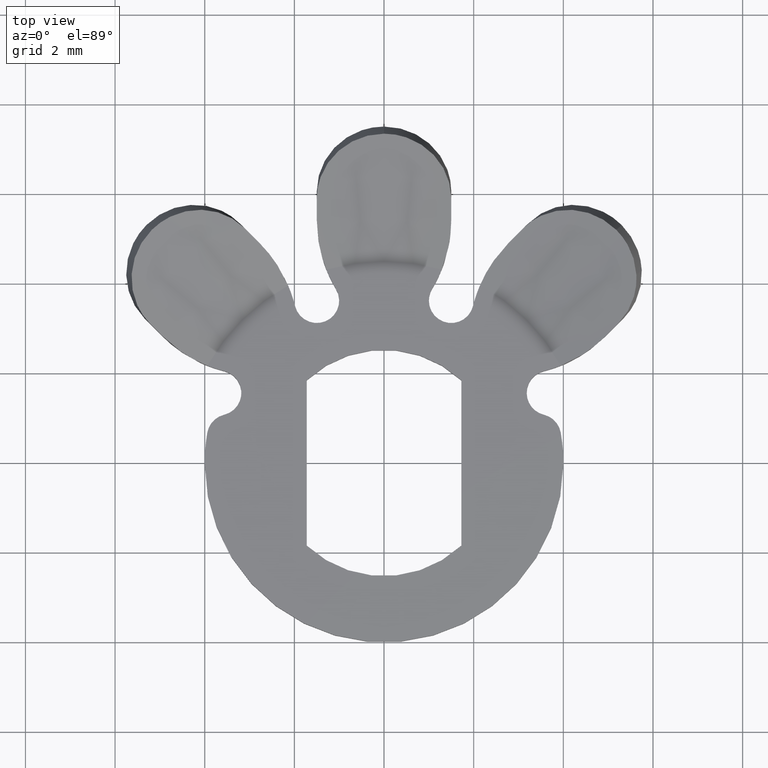
[diagram: clean part render]
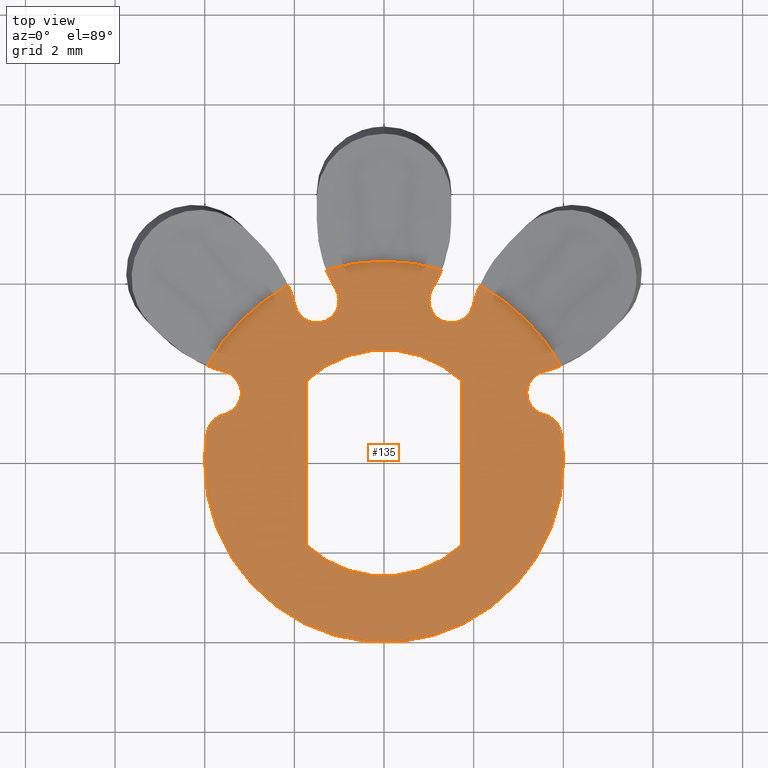
[diagram: same view with one face highlighted and labeled with its STEP entity id]
A machine part, top view. The second image highlights one B-rep face of the part: STEP entity #135.
In plain terms, the highlighted planar face has unit normal (0, 0, -1).
Its self-contained STEP definition (entity closure, byte-faithful):
#3 = AXIS2_PLACEMENT_3D ( 'NONE', #1452, #865, #63 ) ;
#22 = ORIENTED_EDGE ( 'NONE', *, *, #559, .T. ) ;
#23 = CARTESIAN_POINT ( 'NONE',  ( 3.561744368610718400, 2.046515551782373900, 0.5000000000000002200 ) ) ;
#48 = DIRECTION ( 'NONE',  ( -1.000000000000000000, 8.673617379884035500E-016, 0.0000000000000000000 ) ) ;
#54 = CIRCLE ( 'NONE', #1399, 0.4999999999999997800 ) ;
#63 = DIRECTION ( 'NONE',  ( 1.000000000000000000, 0.0000000000000000000, 0.0000000000000000000 ) ) ;
#86 = CARTESIAN_POINT ( 'NONE',  ( -2.139618078849467400, 3.958792047665615300, 0.5000000000000004400 ) ) ;
#109 = ORIENTED_EDGE ( 'NONE', *, *, #592, .F. ) ;
#131 = VERTEX_POINT ( 'NONE', #1215 ) ;
#135 = ADVANCED_FACE ( 'NONE', ( #1712, #342 ), #677, .F. ) ;
#141 = CARTESIAN_POINT ( 'NONE',  ( 0.0000000000000000000, 0.0000000000000000000, 0.5000000000000002200 ) ) ;
#146 = ORIENTED_EDGE ( 'NONE', *, *, #689, .T. ) ;
#152 = AXIS2_PLACEMENT_3D ( 'NONE', #1685, #892, #885 ) ;
#167 = CIRCLE ( 'NONE', #403, 0.4999999999999997800 ) ;
#189 = AXIS2_PLACEMENT_3D ( 'NONE', #481, #883, #204 ) ;
#204 = DIRECTION ( 'NONE',  ( -1.000000000000000000, 8.818177669548768900E-015, 0.0000000000000000000 ) ) ;
#205 = DIRECTION ( 'NONE',  ( -0.0000000000000000000, -0.0000000000000000000, 1.000000000000000000 ) ) ;
#206 = CARTESIAN_POINT ( 'NONE',  ( 2.139618078849467000, 3.958792047665616200, 0.5000000000000004400 ) ) ;
#208 = DIRECTION ( 'NONE',  ( 0.0000000000000000000, 0.0000000000000000000, -1.000000000000000000 ) ) ;
#213 = VECTOR ( 'NONE', #223, 1000.000000000000000 ) ;
#223 = DIRECTION ( 'NONE',  ( 0.0000000000000000000, 1.000000000000000000, 0.0000000000000000000 ) ) ;
#237 = CIRCLE ( 'NONE', #799, 3.000000000000000000 ) ;
#253 = AXIS2_PLACEMENT_3D ( 'NONE', #1225, #1367, #676 ) ;
#255 = CIRCLE ( 'NONE', #275, 3.000000000000000000 ) ;
#259 = EDGE_CURVE ( 'NONE', #1356, #1121, #167, .T. ) ;
#260 = ORIENTED_EDGE ( 'NONE', *, *, #321, .T. ) ;
#275 = AXIS2_PLACEMENT_3D ( 'NONE', #1611, #423, #1538 ) ;
#285 = DIRECTION ( 'NONE',  ( -0.0000000000000000000, -0.0000000000000000000, 1.000000000000000000 ) ) ;
#287 = CIRCLE ( 'NONE', #1655, 4.500000000000000900 ) ;
#301 = CARTESIAN_POINT ( 'NONE',  ( 1.725000000000000100, 4.500000000000000900, 0.5000000000000002200 ) ) ;
#306 = CIRCLE ( 'NONE', #613, 3.000000000000000400 ) ;
#312 = DIRECTION ( 'NONE',  ( -1.000000000000000000, 0.0000000000000000000, 0.0000000000000000000 ) ) ;
#321 = EDGE_CURVE ( 'NONE', #712, #1211, #1530, .T. ) ;
#335 = CIRCLE ( 'NONE', #376, 4.000000000000000000 ) ;
#340 = DIRECTION ( 'NONE',  ( -0.0000000000000000000, -0.0000000000000000000, 1.000000000000000000 ) ) ;
#342 = FACE_BOUND ( 'NONE', #1565, .T. ) ;
#365 = CARTESIAN_POINT ( 'NONE',  ( 1.499999999999999800, 3.621320343559632200, 0.5000000000000002200 ) ) ;
#372 = ORIENTED_EDGE ( 'NONE', *, *, #583, .T. ) ;
#376 = AXIS2_PLACEMENT_3D ( 'NONE', #1325, #1122, #1046 ) ;
#386 = CARTESIAN_POINT ( 'NONE',  ( -2.836116827043756700, 4.957437170603397700, 0.5000000000000002200 ) ) ;
#391 = ORIENTED_EDGE ( 'NONE', *, *, #1107, .F. ) ;
#400 = CARTESIAN_POINT ( 'NONE',  ( -1.724999999999999600, 1.843908891458577500, 0.5000000000000002200 ) ) ;
#403 = AXIS2_PLACEMENT_3D ( 'NONE', #726, #1648, #857 ) ;
#423 = DIRECTION ( 'NONE',  ( -0.0000000000000000000, -0.0000000000000000000, 1.000000000000000000 ) ) ;
#427 = VERTEX_POINT ( 'NONE', #1040 ) ;
#431 = AXIS2_PLACEMENT_3D ( 'NONE', #725, #687, #48 ) ;
#460 = CIRCLE ( 'NONE', #1573, 0.5000000000000004400 ) ;
#466 = AXIS2_PLACEMENT_3D ( 'NONE', #1651, #961, #1234 ) ;
#468 = CARTESIAN_POINT ( 'NONE',  ( 1.000000000000000000, 3.621320343559632200, 0.5000000000000002200 ) ) ;
#471 = CARTESIAN_POINT ( 'NONE',  ( 3.942765279000202100, 2.169009440899337900, 0.5000000000000004400 ) ) ;
#480 = CARTESIAN_POINT ( 'NONE',  ( -1.725000000000000100, -1.843908891458577300, 0.5000000000000002200 ) ) ;
#481 = CARTESIAN_POINT ( 'NONE',  ( 4.896075221957835800, 2.774754878398176100, 0.5000000000000002200 ) ) ;
#484 = CIRCLE ( 'NONE', #742, 0.5000000000000000000 ) ;
#486 = VERTEX_POINT ( 'NONE', #1125 ) ;
#495 = CARTESIAN_POINT ( 'NONE',  ( -4.000000000000000000, 0.0000000000000000000, 0.5000000000000002200 ) ) ;
#496 = EDGE_CURVE ( 'NONE', #1103, #1274, #1016, .T. ) ;
#501 = DIRECTION ( 'NONE',  ( -1.000000000000000000, 0.0000000000000000000, 0.0000000000000000000 ) ) ;
#512 = ORIENTED_EDGE ( 'NONE', *, *, #1143, .F. ) ;
#515 = VERTEX_POINT ( 'NONE', #1012 ) ;
#518 = AXIS2_PLACEMENT_3D ( 'NONE', #386, #661, #1461 ) ;
#521 = CIRCLE ( 'NONE', #1098, 2.524999999999999900 ) ;
#522 = CIRCLE ( 'NONE', #466, 4.500000000000000900 ) ;
#525 = EDGE_CURVE ( 'NONE', #1026, #131, #287, .T. ) ;
#538 = DIRECTION ( 'NONE',  ( 0.0000000000000000000, 0.0000000000000000000, -1.000000000000000000 ) ) ;
#552 = ORIENTED_EDGE ( 'NONE', *, *, #259, .F. ) ;
#559 = EDGE_CURVE ( 'NONE', #1351, #486, #1627, .T. ) ;
#576 = CARTESIAN_POINT ( 'NONE',  ( 3.566401869253394500, 1.075071024158819900, 0.5000000000000002200 ) ) ;
#579 = EDGE_CURVE ( 'NONE', #1599, #1522, #966, .T. ) ;
#583 = EDGE_CURVE ( 'NONE', #515, #1716, #255, .T. ) ;
#589 = CARTESIAN_POINT ( 'NONE',  ( 1.286350249507952400, 4.312227154915524000, 0.5000000000000004400 ) ) ;
#592 = EDGE_CURVE ( 'NONE', #596, #633, #335, .T. ) ;
#596 = VERTEX_POINT ( 'NONE', #1489 ) ;
#599 = VERTEX_POINT ( 'NONE', #576 ) ;
#611 = VECTOR ( 'NONE', #1222, 1000.000000000000000 ) ;
#613 = AXIS2_PLACEMENT_3D ( 'NONE', #1337, #1424, #1684 ) ;
#620 = EDGE_CURVE ( 'NONE', #1153, #1304, #1283, .T. ) ;
#621 = EDGE_LOOP ( 'NONE', ( #1126, #260, #974, #109, #828, #146, #512, #1579, #1615, #1319, #22, #391, #552, #1000, #1355, #684, #1050, #372, #1445, #936 ) ) ;
#627 = CARTESIAN_POINT ( 'NONE',  ( 0.0000000000000000000, 0.0000000000000000000, 0.5000000000000004400 ) ) ;
#633 = VERTEX_POINT ( 'NONE', #495 ) ;
#646 = CARTESIAN_POINT ( 'NONE',  ( -1.071428571428571000, 3.878859720378488700, 0.5000000000000002200 ) ) ;
#661 = DIRECTION ( 'NONE',  ( -0.0000000000000000000, -0.0000000000000000000, 1.000000000000000000 ) ) ;
#676 = DIRECTION ( 'NONE',  ( -1.000000000000000000, 0.0000000000000000000, 0.0000000000000000000 ) ) ;
#677 = PLANE ( 'NONE',  #982 ) ;
#684 = ORIENTED_EDGE ( 'NONE', *, *, #896, .T. ) ;
#687 = DIRECTION ( 'NONE',  ( -0.0000000000000000000, -0.0000000000000000000, 1.000000000000000000 ) ) ;
#689 = EDGE_CURVE ( 'NONE', #1104, #599, #484, .T. ) ;
#712 = VERTEX_POINT ( 'NONE', #1359 ) ;
#725 = CARTESIAN_POINT ( 'NONE',  ( -1.499999999999999600, 3.621320343559632200, 0.5000000000000002200 ) ) ;
#726 = CARTESIAN_POINT ( 'NONE',  ( 1.499999999999999800, 3.621320343559632200, 0.5000000000000002200 ) ) ;
#727 = CARTESIAN_POINT ( 'NONE',  ( -5.401456761889874900E-019, 0.0000000000000000000, 0.5000000000000002200 ) ) ;
#731 = ORIENTED_EDGE ( 'NONE', *, *, #1127, .F. ) ;
#733 = DIRECTION ( 'NONE',  ( -0.0000000000000000000, -0.0000000000000000000, 1.000000000000000000 ) ) ;
#740 = CARTESIAN_POINT ( 'NONE',  ( -3.561744368610708600, 2.046515551782392500, 0.5000000000000002200 ) ) ;
#742 = AXIS2_PLACEMENT_3D ( 'NONE', #1214, #1271, #1286 ) ;
#743 = CIRCLE ( 'NONE', #3, 4.500000000000000900 ) ;
#757 = CARTESIAN_POINT ( 'NONE',  ( 3.682682292205207800, 1.561361948645538800, 0.5000000000000002200 ) ) ;
#767 = DIRECTION ( 'NONE',  ( 1.000000000000000000, 0.0000000000000000000, 0.0000000000000000000 ) ) ;
#770 = CARTESIAN_POINT ( 'NONE',  ( 3.182682292205207400, 1.561361948645538800, 0.5000000000000002200 ) ) ;
#778 = EDGE_CURVE ( 'NONE', #1716, #427, #522, .T. ) ;
#786 = DIRECTION ( 'NONE',  ( -1.000000000000000000, 8.881784197001252300E-016, 0.0000000000000000000 ) ) ;
#792 = DIRECTION ( 'NONE',  ( -1.000000000000000000, 0.0000000000000000000, 0.0000000000000000000 ) ) ;
#799 = AXIS2_PLACEMENT_3D ( 'NONE', #1062, #1486, #813 ) ;
#813 = DIRECTION ( 'NONE',  ( -1.000000000000000000, -2.602085213965210600E-015, 0.0000000000000000000 ) ) ;
#824 = DIRECTION ( 'NONE',  ( -0.0000000000000000000, -0.0000000000000000000, 1.000000000000000000 ) ) ;
#828 = ORIENTED_EDGE ( 'NONE', *, *, #1551, .F. ) ;
#835 = CARTESIAN_POINT ( 'NONE',  ( 1.724999999999999900, 1.843908891458577100, 0.5000000000000002200 ) ) ;
#857 = DIRECTION ( 'NONE',  ( -1.000000000000000000, 1.561251128379127000E-014, 0.0000000000000000000 ) ) ;
#860 = AXIS2_PLACEMENT_3D ( 'NONE', #1013, #205, #1149 ) ;
#861 = AXIS2_PLACEMENT_3D ( 'NONE', #874, #824, #792 ) ;
#865 = DIRECTION ( 'NONE',  ( -0.0000000000000000000, -0.0000000000000000000, 1.000000000000000000 ) ) ;
#866 = CARTESIAN_POINT ( 'NONE',  ( 1.725000000000000300, -1.843908891458576800, 0.5000000000000002200 ) ) ;
#874 = CARTESIAN_POINT ( 'NONE',  ( 1.499999999999999800, 5.424095981291627800, 0.5000000000000002200 ) ) ;
#883 = DIRECTION ( 'NONE',  ( -0.0000000000000000000, -0.0000000000000000000, 1.000000000000000000 ) ) ;
#885 = DIRECTION ( 'NONE',  ( -1.000000000000000000, 8.673617379884043400E-016, 0.0000000000000000000 ) ) ;
#889 = CIRCLE ( 'NONE', #1009, 4.000000000000000000 ) ;
#892 = DIRECTION ( 'NONE',  ( -0.0000000000000000000, -0.0000000000000000000, 1.000000000000000000 ) ) ;
#896 = EDGE_CURVE ( 'NONE', #131, #1111, #1345, .T. ) ;
#908 = CIRCLE ( 'NONE', #518, 3.000000000000000400 ) ;
#924 = DIRECTION ( 'NONE',  ( -0.0000000000000000000, -0.0000000000000000000, 1.000000000000000000 ) ) ;
#935 = VERTEX_POINT ( 'NONE', #471 ) ;
#936 = ORIENTED_EDGE ( 'NONE', *, *, #1713, .T. ) ;
#949 = CARTESIAN_POINT ( 'NONE',  ( 3.682682292205207800, 1.561361948645538800, 0.5000000000000002200 ) ) ;
#955 = CARTESIAN_POINT ( 'NONE',  ( -3.942995938630374100, 0.6728915424824237800, 0.5000000000000002200 ) ) ;
#961 = DIRECTION ( 'NONE',  ( -0.0000000000000000000, -0.0000000000000000000, 1.000000000000000000 ) ) ;
#966 = LINE ( 'NONE', #1686, #611 ) ;
#974 = ORIENTED_EDGE ( 'NONE', *, *, #1465, .F. ) ;
#978 = ORIENTED_EDGE ( 'NONE', *, *, #1429, .F. ) ;
#982 = AXIS2_PLACEMENT_3D ( 'NONE', #1347, #538, #1483 ) ;
#1000 = ORIENTED_EDGE ( 'NONE', *, *, #1631, .T. ) ;
#1009 = AXIS2_PLACEMENT_3D ( 'NONE', #141, #208, #312 ) ;
#1012 = CARTESIAN_POINT ( 'NONE',  ( -1.985153603136833300, 3.500382419965138300, 0.5000000000000002200 ) ) ;
#1013 = CARTESIAN_POINT ( 'NONE',  ( -3.450121446301577200, 0.5887800996721207500, 0.5000000000000002200 ) ) ;
#1014 = CARTESIAN_POINT ( 'NONE',  ( 1.071428571428571400, 3.878859720378488300, 0.5000000000000002200 ) ) ;
#1016 = CIRCLE ( 'NONE', #1397, 0.5000000000000004400 ) ;
#1026 = VERTEX_POINT ( 'NONE', #589 ) ;
#1031 = ORIENTED_EDGE ( 'NONE', *, *, #579, .F. ) ;
#1040 = CARTESIAN_POINT ( 'NONE',  ( -3.942765279000191000, 2.169009440899358300, 0.5000000000000004400 ) ) ;
#1046 = DIRECTION ( 'NONE',  ( -1.000000000000000000, 0.0000000000000000000, 0.0000000000000000000 ) ) ;
#1050 = ORIENTED_EDGE ( 'NONE', *, *, #1603, .F. ) ;
#1062 = CARTESIAN_POINT ( 'NONE',  ( 2.836116827043779800, 4.957437170603382600, 0.5000000000000002200 ) ) ;
#1098 = AXIS2_PLACEMENT_3D ( 'NONE', #727, #285, #1547 ) ;
#1103 = VERTEX_POINT ( 'NONE', #23 ) ;
#1104 = VERTEX_POINT ( 'NONE', #1531 ) ;
#1107 = EDGE_CURVE ( 'NONE', #1121, #486, #54, .T. ) ;
#1111 = VERTEX_POINT ( 'NONE', #646 ) ;
#1116 = CIRCLE ( 'NONE', #152, 0.4999999999999995600 ) ;
#1121 = VERTEX_POINT ( 'NONE', #468 ) ;
#1122 = DIRECTION ( 'NONE',  ( 0.0000000000000000000, 0.0000000000000000000, -1.000000000000000000 ) ) ;
#1125 = CARTESIAN_POINT ( 'NONE',  ( 1.985153603136833300, 3.500382419965138300, 0.5000000000000002200 ) ) ;
#1126 = ORIENTED_EDGE ( 'NONE', *, *, #1535, .F. ) ;
#1127 = EDGE_CURVE ( 'NONE', #1304, #1599, #1491, .T. ) ;
#1143 = EDGE_CURVE ( 'NONE', #1274, #599, #460, .T. ) ;
#1149 = DIRECTION ( 'NONE',  ( -1.000000000000000000, 0.0000000000000000000, 0.0000000000000000000 ) ) ;
#1153 = VERTEX_POINT ( 'NONE', #866 ) ;
#1169 = EDGE_CURVE ( 'NONE', #935, #1351, #743, .T. ) ;
#1211 = VERTEX_POINT ( 'NONE', #955 ) ;
#1214 = CARTESIAN_POINT ( 'NONE',  ( 3.450121446301580800, 0.5887800996721007700, 0.5000000000000002200 ) ) ;
#1215 = CARTESIAN_POINT ( 'NONE',  ( -1.286350249507952200, 4.312227154915524000, 0.5000000000000004400 ) ) ;
#1222 = DIRECTION ( 'NONE',  ( 0.0000000000000000000, -1.000000000000000000, 0.0000000000000000000 ) ) ;
#1225 = CARTESIAN_POINT ( 'NONE',  ( 0.0000000000000000000, 0.0000000000000000000, 0.5000000000000002200 ) ) ;
#1234 = DIRECTION ( 'NONE',  ( 1.000000000000000000, 0.0000000000000000000, 0.0000000000000000000 ) ) ;
#1256 = VERTEX_POINT ( 'NONE', #740 ) ;
#1271 = DIRECTION ( 'NONE',  ( -0.0000000000000000000, -0.0000000000000000000, 1.000000000000000000 ) ) ;
#1274 = VERTEX_POINT ( 'NONE', #770 ) ;
#1283 = LINE ( 'NONE', #301, #213 ) ;
#1286 = DIRECTION ( 'NONE',  ( -1.000000000000000000, 1.734723475976807100E-015, 0.0000000000000000000 ) ) ;
#1288 = DIRECTION ( 'NONE',  ( -0.0000000000000000000, -0.0000000000000000000, 1.000000000000000000 ) ) ;
#1301 = ORIENTED_EDGE ( 'NONE', *, *, #620, .F. ) ;
#1304 = VERTEX_POINT ( 'NONE', #835 ) ;
#1315 = AXIS2_PLACEMENT_3D ( 'NONE', #1515, #924, #786 ) ;
#1319 = ORIENTED_EDGE ( 'NONE', *, *, #1169, .T. ) ;
#1325 = CARTESIAN_POINT ( 'NONE',  ( 0.0000000000000000000, 0.0000000000000000000, 0.5000000000000002200 ) ) ;
#1337 = CARTESIAN_POINT ( 'NONE',  ( -1.500000000000000000, 5.424095981291626100, 0.5000000000000002200 ) ) ;
#1345 = CIRCLE ( 'NONE', #861, 3.000000000000000000 ) ;
#1347 = CARTESIAN_POINT ( 'NONE',  ( 0.0000000000000000000, 4.500000000000000900, 0.5000000000000002200 ) ) ;
#1351 = VERTEX_POINT ( 'NONE', #206 ) ;
#1355 = ORIENTED_EDGE ( 'NONE', *, *, #525, .T. ) ;
#1356 = VERTEX_POINT ( 'NONE', #1014 ) ;
#1359 = CARTESIAN_POINT ( 'NONE',  ( -3.566401869253388800, 1.075071024158839300, 0.5000000000000002200 ) ) ;
#1367 = DIRECTION ( 'NONE',  ( 0.0000000000000000000, 0.0000000000000000000, -1.000000000000000000 ) ) ;
#1384 = CIRCLE ( 'NONE', #431, 0.5000000000000000000 ) ;
#1397 = AXIS2_PLACEMENT_3D ( 'NONE', #757, #1649, #1499 ) ;
#1399 = AXIS2_PLACEMENT_3D ( 'NONE', #365, #1288, #1555 ) ;
#1424 = DIRECTION ( 'NONE',  ( -0.0000000000000000000, -0.0000000000000000000, 1.000000000000000000 ) ) ;
#1429 = EDGE_CURVE ( 'NONE', #1522, #1153, #521, .T. ) ;
#1430 = CIRCLE ( 'NONE', #253, 4.000000000000000000 ) ;
#1445 = ORIENTED_EDGE ( 'NONE', *, *, #778, .T. ) ;
#1452 = CARTESIAN_POINT ( 'NONE',  ( 0.0000000000000000000, 0.0000000000000000000, 0.5000000000000004400 ) ) ;
#1461 = DIRECTION ( 'NONE',  ( -1.000000000000000000, 0.0000000000000000000, 0.0000000000000000000 ) ) ;
#1465 = EDGE_CURVE ( 'NONE', #633, #1211, #889, .T. ) ;
#1483 = DIRECTION ( 'NONE',  ( -1.000000000000000000, 0.0000000000000000000, -0.0000000000000000000 ) ) ;
#1486 = DIRECTION ( 'NONE',  ( -0.0000000000000000000, -0.0000000000000000000, 1.000000000000000000 ) ) ;
#1489 = CARTESIAN_POINT ( 'NONE',  ( 4.000000000000000000, 4.898587196589412800E-016, 0.5000000000000002200 ) ) ;
#1491 = CIRCLE ( 'NONE', #1315, 2.524999999999999900 ) ;
#1499 = DIRECTION ( 'NONE',  ( -1.000000000000000000, -8.673617379884027600E-016, 0.0000000000000000000 ) ) ;
#1515 = CARTESIAN_POINT ( 'NONE',  ( -5.401456761889874900E-019, 0.0000000000000000000, 0.5000000000000002200 ) ) ;
#1522 = VERTEX_POINT ( 'NONE', #480 ) ;
#1530 = CIRCLE ( 'NONE', #860, 0.5000000000000000000 ) ;
#1531 = CARTESIAN_POINT ( 'NONE',  ( 3.942995938630377700, 0.6728915424824008000, 0.5000000000000002200 ) ) ;
#1535 = EDGE_CURVE ( 'NONE', #712, #1256, #1116, .T. ) ;
#1538 = DIRECTION ( 'NONE',  ( -1.000000000000000000, 0.0000000000000000000, 0.0000000000000000000 ) ) ;
#1547 = DIRECTION ( 'NONE',  ( -1.000000000000000000, 0.0000000000000000000, 0.0000000000000000000 ) ) ;
#1551 = EDGE_CURVE ( 'NONE', #1104, #596, #1430, .T. ) ;
#1555 = DIRECTION ( 'NONE',  ( -1.000000000000000000, 0.0000000000000000000, 0.0000000000000000000 ) ) ;
#1565 = EDGE_LOOP ( 'NONE', ( #1301, #978, #1031, #731 ) ) ;
#1573 = AXIS2_PLACEMENT_3D ( 'NONE', #949, #340, #501 ) ;
#1579 = ORIENTED_EDGE ( 'NONE', *, *, #496, .F. ) ;
#1599 = VERTEX_POINT ( 'NONE', #400 ) ;
#1603 = EDGE_CURVE ( 'NONE', #515, #1111, #1384, .T. ) ;
#1611 = CARTESIAN_POINT ( 'NONE',  ( -4.896075221957836700, 2.774754878398177000, 0.5000000000000002200 ) ) ;
#1615 = ORIENTED_EDGE ( 'NONE', *, *, #1667, .T. ) ;
#1627 = CIRCLE ( 'NONE', #189, 3.000000000000000000 ) ;
#1631 = EDGE_CURVE ( 'NONE', #1356, #1026, #306, .T. ) ;
#1648 = DIRECTION ( 'NONE',  ( -0.0000000000000000000, -0.0000000000000000000, 1.000000000000000000 ) ) ;
#1649 = DIRECTION ( 'NONE',  ( -0.0000000000000000000, -0.0000000000000000000, 1.000000000000000000 ) ) ;
#1651 = CARTESIAN_POINT ( 'NONE',  ( 0.0000000000000000000, 0.0000000000000000000, 0.5000000000000004400 ) ) ;
#1655 = AXIS2_PLACEMENT_3D ( 'NONE', #627, #733, #767 ) ;
#1667 = EDGE_CURVE ( 'NONE', #1103, #935, #237, .T. ) ;
#1684 = DIRECTION ( 'NONE',  ( -1.000000000000000000, 7.228014483236695200E-015, 0.0000000000000000000 ) ) ;
#1685 = CARTESIAN_POINT ( 'NONE',  ( -3.682682292205200700, 1.561361948645558100, 0.5000000000000002200 ) ) ;
#1686 = CARTESIAN_POINT ( 'NONE',  ( -1.725000000000000100, 4.500000000000000900, 0.5000000000000002200 ) ) ;
#1712 = FACE_OUTER_BOUND ( 'NONE', #621, .T. ) ;
#1713 = EDGE_CURVE ( 'NONE', #427, #1256, #908, .T. ) ;
#1716 = VERTEX_POINT ( 'NONE', #86 ) ;